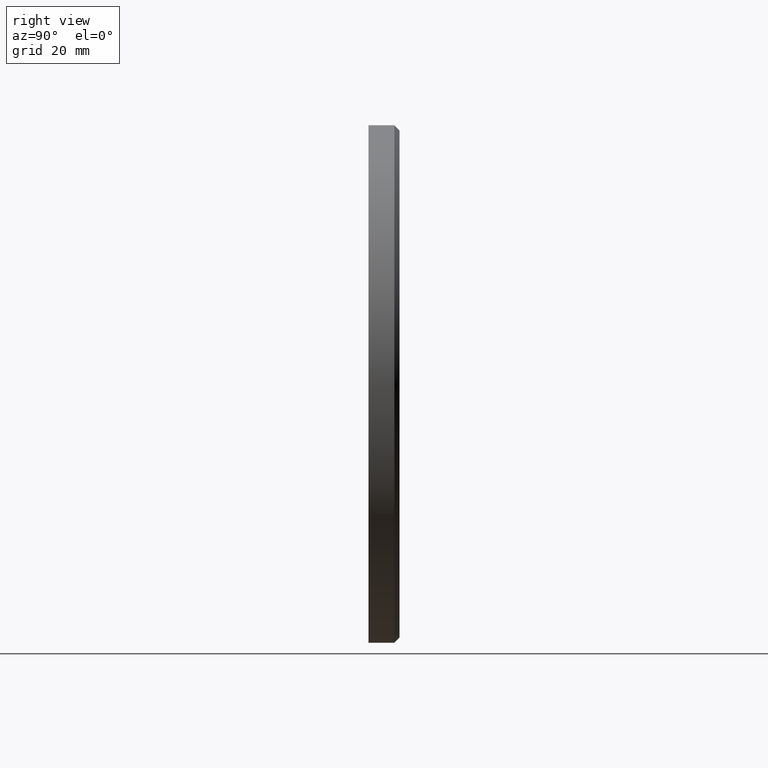
[diagram: clean part render]
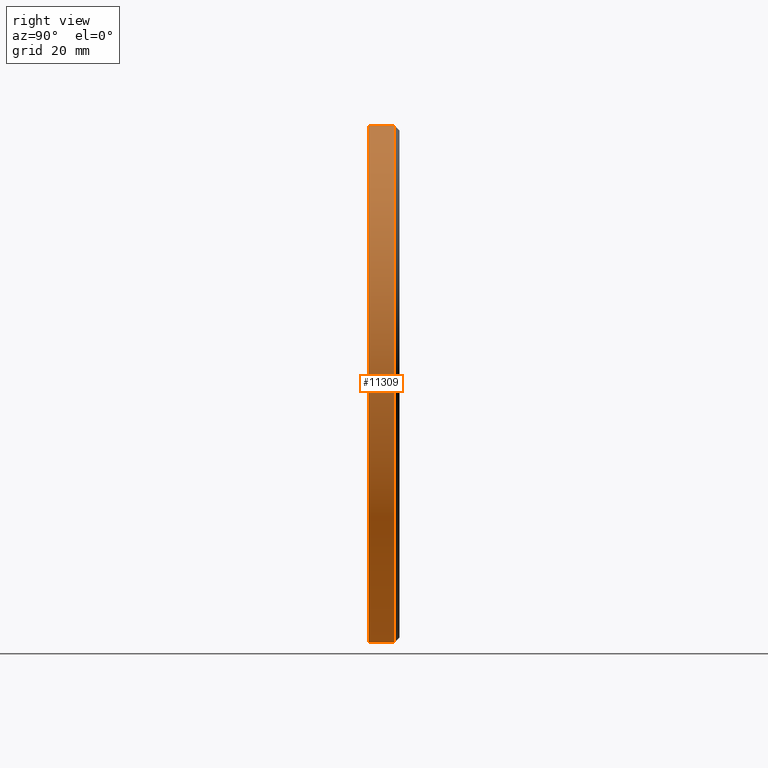
[diagram: same view with one face highlighted and labeled with its STEP entity id]
A machine part, right view. The second image highlights one B-rep face of the part: STEP entity #11309.
In plain terms, the highlighted cylindrical surface (partial cylindrical patch) has radius 50 mm, axis along (-0, -1, -0).
Its self-contained STEP definition (entity closure, byte-faithful):
#435 = VERTEX_POINT ( 'NONE', #10457 ) ;
#1000 = FACE_OUTER_BOUND ( 'NONE', #7621, .T. ) ;
#1691 = CIRCLE ( 'NONE', #4603, 50.00000000000000000 ) ;
#2151 = CARTESIAN_POINT ( 'NONE',  ( 0.000000000000000000, 3.000000000000000000, -50.00000000000000000 ) ) ;
#2778 = DIRECTION ( 'NONE',  ( 0.000000000000000000, 1.000000000000000000, 0.000000000000000000 ) ) ;
#2959 = VECTOR ( 'NONE', #8670, 1000.000000000000000 ) ;
#3144 = ORIENTED_EDGE ( 'NONE', *, *, #11461, .T. ) ;
#3274 = LINE ( 'NONE', #2151, #13728 ) ;
#3502 = CIRCLE ( 'NONE', #9971, 50.00000000000000000 ) ;
#3527 = EDGE_CURVE ( 'NONE', #6423, #8956, #3502, .T. ) ;
#3849 = AXIS2_PLACEMENT_3D ( 'NONE', #14277, #7606, #7651 ) ;
#3897 = DIRECTION ( 'NONE',  ( 0.000000000000000000, 0.000000000000000000, 1.000000000000000000 ) ) ;
#4603 = AXIS2_PLACEMENT_3D ( 'NONE', #11125, #6595, #11226 ) ;
#4750 = ORIENTED_EDGE ( 'NONE', *, *, #5201, .T. ) ;
#5201 = EDGE_CURVE ( 'NONE', #7557, #6423, #9194, .T. ) ;
#6423 = VERTEX_POINT ( 'NONE', #9627 ) ;
#6595 = DIRECTION ( 'NONE',  ( 0.000000000000000000, -1.000000000000000000, 0.000000000000000000 ) ) ;
#7291 = EDGE_CURVE ( 'NONE', #435, #8956, #3274, .T. ) ;
#7528 = ORIENTED_EDGE ( 'NONE', *, *, #3527, .T. ) ;
#7555 = CARTESIAN_POINT ( 'NONE',  ( 6.123233995736766085E-15, 3.000000000000000000, 50.00000000000000000 ) ) ;
#7557 = VERTEX_POINT ( 'NONE', #8666 ) ;
#7606 = DIRECTION ( 'NONE',  ( -0.000000000000000000, -1.000000000000000000, -0.000000000000000000 ) ) ;
#7608 = ORIENTED_EDGE ( 'NONE', *, *, #7291, .F. ) ;
#7621 = EDGE_LOOP ( 'NONE', ( #3144, #4750, #7528, #7608 ) ) ;
#7651 = DIRECTION ( 'NONE',  ( 0.000000000000000000, 0.000000000000000000, -1.000000000000000000 ) ) ;
#7931 = CYLINDRICAL_SURFACE ( 'NONE', #3849, 50.00000000000000000 ) ;
#8378 = CARTESIAN_POINT ( 'NONE',  ( 0.000000000000000000, -3.000000000000000000, -50.00000000000000000 ) ) ;
#8666 = CARTESIAN_POINT ( 'NONE',  ( 6.123233995736766085E-15, 1.999999999999999112, 50.00000000000000000 ) ) ;
#8670 = DIRECTION ( 'NONE',  ( -0.000000000000000000, -1.000000000000000000, -0.000000000000000000 ) ) ;
#8956 = VERTEX_POINT ( 'NONE', #8378 ) ;
#9194 = LINE ( 'NONE', #7555, #2959 ) ;
#9627 = CARTESIAN_POINT ( 'NONE',  ( 6.123233995736766085E-15, -3.000000000000000000, 50.00000000000000000 ) ) ;
#9971 = AXIS2_PLACEMENT_3D ( 'NONE', #14063, #2778, #3897 ) ;
#10002 = DIRECTION ( 'NONE',  ( -0.000000000000000000, -1.000000000000000000, -0.000000000000000000 ) ) ;
#10457 = CARTESIAN_POINT ( 'NONE',  ( 0.000000000000000000, 1.999999999999999112, -50.00000000000000000 ) ) ;
#11125 = CARTESIAN_POINT ( 'NONE',  ( 0.000000000000000000, 1.999999999999999112, 0.000000000000000000 ) ) ;
#11226 = DIRECTION ( 'NONE',  ( 0.000000000000000000, 0.000000000000000000, 1.000000000000000000 ) ) ;
#11309 = ADVANCED_FACE ( 'NONE', ( #1000 ), #7931, .T. ) ;
#11461 = EDGE_CURVE ( 'NONE', #435, #7557, #1691, .T. ) ;
#13728 = VECTOR ( 'NONE', #10002, 1000.000000000000000 ) ;
#14063 = CARTESIAN_POINT ( 'NONE',  ( 0.000000000000000000, -3.000000000000000000, 0.000000000000000000 ) ) ;
#14277 = CARTESIAN_POINT ( 'NONE',  ( 0.000000000000000000, 3.000000000000000000, 0.000000000000000000 ) ) ;